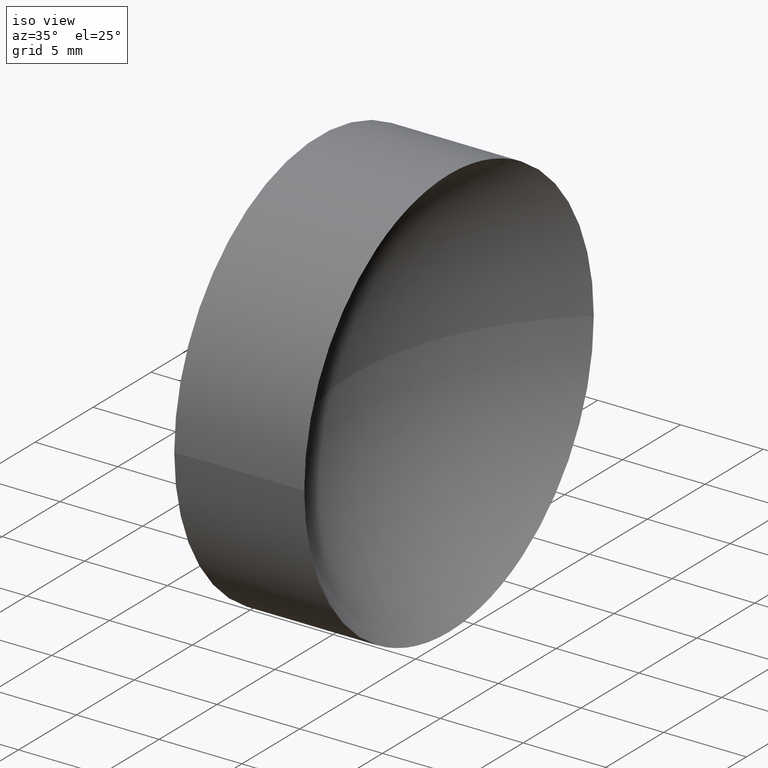
[diagram: clean part render]
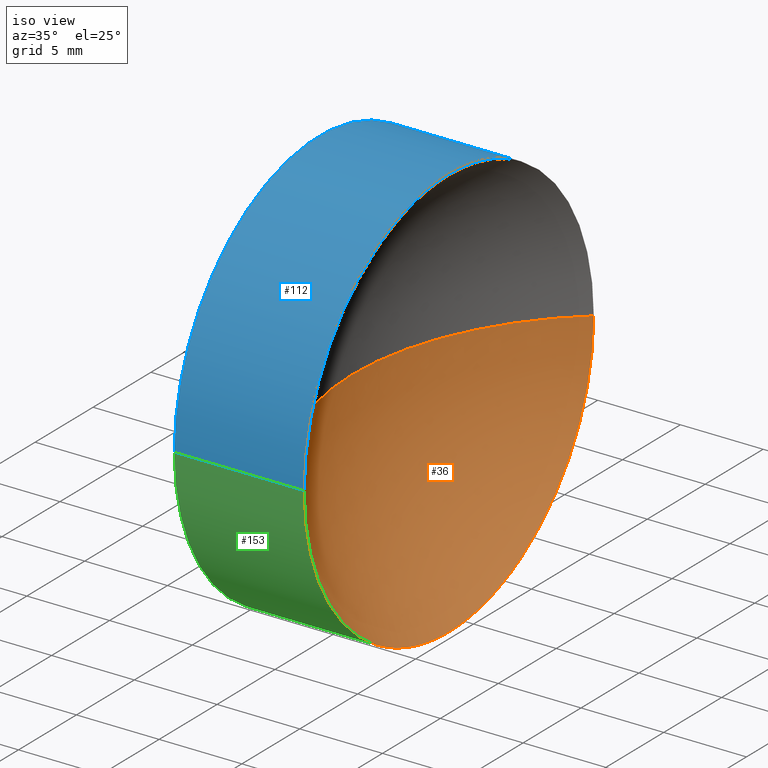
[diagram: same view with three faces highlighted in distinct colors, each labeled with its STEP entity id]
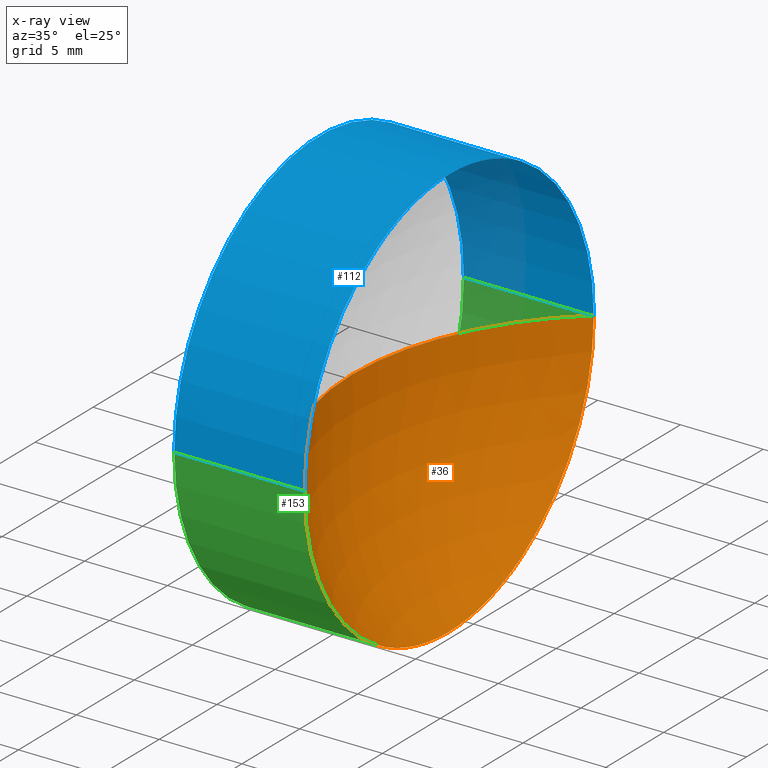
[diagram: x-ray of the same camera — body ghosted, the three highlighted faces saturated]
A machine part, iso view with three faces highlighted in distinct colors.
The next image is the same camera in x-ray (body ghosted, the three faces saturated) — at least one of them is partly hidden behind the body in this view.
Their STEP definitions:

[orange] entity #36 — the highlighted spherical surface has radius 16.27 mm.
#19 = EDGE_CURVE ( 'NONE', #154, #118, #66, .T. ) ;
#21 = CARTESIAN_POINT ( 'NONE',  ( 65.21363783927023400, 45.07872591329309100, 1.530808498934191500E-015 ) ) ;
#24 = AXIS2_PLACEMENT_3D ( 'NONE', #102, #60, #50 ) ;
#32 = SPHERICAL_SURFACE ( 'NONE', #24, 16.27000000000000300 ) ;
#33 = CARTESIAN_POINT ( 'NONE',  ( 65.21363783927022000, 32.57872591329309100, 0.0000000000000000000 ) ) ;
#36 = ADVANCED_FACE ( 'NONE', ( #74 ), #32, .F. ) ;
#45 = CARTESIAN_POINT ( 'NONE',  ( 75.62819015802112700, 32.57872591329309100, 0.0000000000000000000 ) ) ;
#48 = AXIS2_PLACEMENT_3D ( 'NONE', #45, #79, #136 ) ;
#50 = DIRECTION ( 'NONE',  ( -8.529679045983069200E-016, -1.000000000000000000, 0.0000000000000000000 ) ) ;
#53 = CARTESIAN_POINT ( 'NONE',  ( 75.62819015802112700, 32.57872591329309100, 0.0000000000000000000 ) ) ;
#60 = DIRECTION ( 'NONE',  ( 0.0000000000000000000, 0.0000000000000000000, 1.000000000000000000 ) ) ;
#66 = CIRCLE ( 'NONE', #48, 16.27000000000000700 ) ;
#74 = FACE_OUTER_BOUND ( 'NONE', #149, .T. ) ;
#75 = AXIS2_PLACEMENT_3D ( 'NONE', #33, #125, #106 ) ;
#79 = DIRECTION ( 'NONE',  ( 0.0000000000000000000, -0.0000000000000000000, -1.000000000000000000 ) ) ;
#90 = EDGE_CURVE ( 'NONE', #145, #154, #159, .T. ) ;
#93 = CARTESIAN_POINT ( 'NONE',  ( 59.35819015802111700, 32.57872591329309800, 0.0000000000000000000 ) ) ;
#102 = CARTESIAN_POINT ( 'NONE',  ( 75.62819015802112700, 32.57872591329309100, 0.0000000000000000000 ) ) ;
#106 = DIRECTION ( 'NONE',  ( 0.0000000000000000000, -1.000000000000000000, 0.0000000000000000000 ) ) ;
#108 = CIRCLE ( 'NONE', #117, 16.27000000000000300 ) ;
#110 = ORIENTED_EDGE ( 'NONE', *, *, #155, .T. ) ;
#113 = ORIENTED_EDGE ( 'NONE', *, *, #19, .F. ) ;
#114 = DIRECTION ( 'NONE',  ( 0.0000000000000000000, -1.000000000000000000, -1.224646799147353200E-016 ) ) ;
#117 = AXIS2_PLACEMENT_3D ( 'NONE', #53, #158, #114 ) ;
#118 = VERTEX_POINT ( 'NONE', #93 ) ;
#125 = DIRECTION ( 'NONE',  ( -1.000000000000000000, 4.853228644174421400E-016, -0.0000000000000000000 ) ) ;
#131 = ORIENTED_EDGE ( 'NONE', *, *, #90, .F. ) ;
#136 = DIRECTION ( 'NONE',  ( -1.000000000000000000, 0.0000000000000000000, 0.0000000000000000000 ) ) ;
#138 = CARTESIAN_POINT ( 'NONE',  ( 65.21363783927020600, 20.07872591329308400, 0.0000000000000000000 ) ) ;
#145 = VERTEX_POINT ( 'NONE', #21 ) ;
#149 = EDGE_LOOP ( 'NONE', ( #131, #110, #113 ) ) ;
#154 = VERTEX_POINT ( 'NONE', #138 ) ;
#155 = EDGE_CURVE ( 'NONE', #145, #118, #108, .T. ) ;
#158 = DIRECTION ( 'NONE',  ( -5.943490924618453600E-032, -1.224646799147353200E-016, 1.000000000000000000 ) ) ;
#159 = CIRCLE ( 'NONE', #75, 12.50000000000000400 ) ;

[blue] entity #112 — the highlighted cylindrical surface (partial cylindrical patch) has radius 12.5 mm, axis along (-1, 0, -0).
#2 = VECTOR ( 'NONE', #7, 1000.000000000000000 ) ;
#5 = EDGE_CURVE ( 'NONE', #29, #41, #25, .T. ) ;
#7 = DIRECTION ( 'NONE',  ( -1.000000000000000000, 4.853228644174421400E-016, -0.0000000000000000000 ) ) ;
#9 = CARTESIAN_POINT ( 'NONE',  ( 57.35819015802111700, 45.07872591329309100, 1.530808498934191900E-015 ) ) ;
#11 = DIRECTION ( 'NONE',  ( -1.000000000000000000, 4.853228644174421400E-016, -0.0000000000000000000 ) ) ;
#14 = EDGE_LOOP ( 'NONE', ( #89, #163, #98, #91 ) ) ;
#17 = CARTESIAN_POINT ( 'NONE',  ( 55.00739462442118800, 45.07872591329309100, 1.530808498934191500E-015 ) ) ;
#21 = CARTESIAN_POINT ( 'NONE',  ( 65.21363783927023400, 45.07872591329309100, 1.530808498934191500E-015 ) ) ;
#25 = CIRCLE ( 'NONE', #115, 12.49999999999999600 ) ;
#26 = CIRCLE ( 'NONE', #80, 12.50000000000000400 ) ;
#29 = VERTEX_POINT ( 'NONE', #62 ) ;
#30 = CARTESIAN_POINT ( 'NONE',  ( 65.21363783927022000, 32.57872591329309100, 0.0000000000000000000 ) ) ;
#37 = EDGE_CURVE ( 'NONE', #154, #145, #26, .T. ) ;
#40 = EDGE_CURVE ( 'NONE', #145, #41, #100, .T. ) ;
#41 = VERTEX_POINT ( 'NONE', #9 ) ;
#47 = FACE_OUTER_BOUND ( 'NONE', #14, .T. ) ;
#57 = VECTOR ( 'NONE', #119, 1000.000000000000000 ) ;
#59 = EDGE_CURVE ( 'NONE', #154, #29, #85, .T. ) ;
#62 = CARTESIAN_POINT ( 'NONE',  ( 57.35819015802110200, 20.07872591329309800, 0.0000000000000000000 ) ) ;
#63 = DIRECTION ( 'NONE',  ( -1.000000000000000000, 4.853228644174421400E-016, -0.0000000000000000000 ) ) ;
#64 = DIRECTION ( 'NONE',  ( 0.0000000000000000000, -1.000000000000000000, 0.0000000000000000000 ) ) ;
#80 = AXIS2_PLACEMENT_3D ( 'NONE', #30, #63, #64 ) ;
#85 = LINE ( 'NONE', #137, #2 ) ;
#89 = ORIENTED_EDGE ( 'NONE', *, *, #37, .T. ) ;
#91 = ORIENTED_EDGE ( 'NONE', *, *, #59, .F. ) ;
#98 = ORIENTED_EDGE ( 'NONE', *, *, #5, .F. ) ;
#100 = LINE ( 'NONE', #17, #57 ) ;
#103 = AXIS2_PLACEMENT_3D ( 'NONE', #107, #11, #128 ) ;
#107 = CARTESIAN_POINT ( 'NONE',  ( 55.00739462442118100, 32.57872591329309800, 0.0000000000000000000 ) ) ;
#111 = CARTESIAN_POINT ( 'NONE',  ( 57.35819015802111000, 32.57872591329309800, 0.0000000000000000000 ) ) ;
#112 = ADVANCED_FACE ( 'NONE', ( #47 ), #116, .T. ) ;
#115 = AXIS2_PLACEMENT_3D ( 'NONE', #111, #150, #120 ) ;
#116 = CYLINDRICAL_SURFACE ( 'NONE', #103, 12.50000000000000000 ) ;
#119 = DIRECTION ( 'NONE',  ( -1.000000000000000000, 4.853228644174421400E-016, -0.0000000000000000000 ) ) ;
#120 = DIRECTION ( 'NONE',  ( -5.551115123125784700E-016, -1.000000000000000000, 0.0000000000000000000 ) ) ;
#128 = DIRECTION ( 'NONE',  ( -5.551115123125782700E-016, -1.000000000000000000, 0.0000000000000000000 ) ) ;
#137 = CARTESIAN_POINT ( 'NONE',  ( 55.00739462442117400, 20.07872591329309500, 0.0000000000000000000 ) ) ;
#138 = CARTESIAN_POINT ( 'NONE',  ( 65.21363783927020600, 20.07872591329308400, 0.0000000000000000000 ) ) ;
#145 = VERTEX_POINT ( 'NONE', #21 ) ;
#150 = DIRECTION ( 'NONE',  ( -1.000000000000000000, 4.853228644174421400E-016, -0.0000000000000000000 ) ) ;
#154 = VERTEX_POINT ( 'NONE', #138 ) ;
#163 = ORIENTED_EDGE ( 'NONE', *, *, #40, .T. ) ;

[green] entity #153 — the highlighted cylindrical surface (partial cylindrical patch) has radius 12.5 mm, axis along (-1, 0, -0).
#2 = VECTOR ( 'NONE', #7, 1000.000000000000000 ) ;
#7 = DIRECTION ( 'NONE',  ( -1.000000000000000000, 4.853228644174421400E-016, -0.0000000000000000000 ) ) ;
#9 = CARTESIAN_POINT ( 'NONE',  ( 57.35819015802111700, 45.07872591329309100, 1.530808498934191900E-015 ) ) ;
#10 = DIRECTION ( 'NONE',  ( -5.551115123125784700E-016, -1.000000000000000000, 0.0000000000000000000 ) ) ;
#13 = EDGE_LOOP ( 'NONE', ( #54, #148, #27, #87 ) ) ;
#17 = CARTESIAN_POINT ( 'NONE',  ( 55.00739462442118800, 45.07872591329309100, 1.530808498934191500E-015 ) ) ;
#21 = CARTESIAN_POINT ( 'NONE',  ( 65.21363783927023400, 45.07872591329309100, 1.530808498934191500E-015 ) ) ;
#27 = ORIENTED_EDGE ( 'NONE', *, *, #59, .T. ) ;
#28 = EDGE_CURVE ( 'NONE', #41, #29, #97, .T. ) ;
#29 = VERTEX_POINT ( 'NONE', #62 ) ;
#33 = CARTESIAN_POINT ( 'NONE',  ( 65.21363783927022000, 32.57872591329309100, 0.0000000000000000000 ) ) ;
#40 = EDGE_CURVE ( 'NONE', #145, #41, #100, .T. ) ;
#41 = VERTEX_POINT ( 'NONE', #9 ) ;
#54 = ORIENTED_EDGE ( 'NONE', *, *, #40, .F. ) ;
#57 = VECTOR ( 'NONE', #119, 1000.000000000000000 ) ;
#59 = EDGE_CURVE ( 'NONE', #154, #29, #85, .T. ) ;
#62 = CARTESIAN_POINT ( 'NONE',  ( 57.35819015802110200, 20.07872591329309800, 0.0000000000000000000 ) ) ;
#65 = DIRECTION ( 'NONE',  ( -1.000000000000000000, 4.853228644174421400E-016, -0.0000000000000000000 ) ) ;
#71 = CARTESIAN_POINT ( 'NONE',  ( 55.00739462442118100, 32.57872591329309800, 0.0000000000000000000 ) ) ;
#73 = AXIS2_PLACEMENT_3D ( 'NONE', #122, #121, #10 ) ;
#75 = AXIS2_PLACEMENT_3D ( 'NONE', #33, #125, #106 ) ;
#85 = LINE ( 'NONE', #137, #2 ) ;
#87 = ORIENTED_EDGE ( 'NONE', *, *, #28, .F. ) ;
#90 = EDGE_CURVE ( 'NONE', #145, #154, #159, .T. ) ;
#97 = CIRCLE ( 'NONE', #73, 12.49999999999999600 ) ;
#100 = LINE ( 'NONE', #17, #57 ) ;
#106 = DIRECTION ( 'NONE',  ( 0.0000000000000000000, -1.000000000000000000, 0.0000000000000000000 ) ) ;
#119 = DIRECTION ( 'NONE',  ( -1.000000000000000000, 4.853228644174421400E-016, -0.0000000000000000000 ) ) ;
#121 = DIRECTION ( 'NONE',  ( -1.000000000000000000, 4.853228644174421400E-016, -0.0000000000000000000 ) ) ;
#122 = CARTESIAN_POINT ( 'NONE',  ( 57.35819015802111000, 32.57872591329309800, 0.0000000000000000000 ) ) ;
#124 = AXIS2_PLACEMENT_3D ( 'NONE', #71, #65, #129 ) ;
#125 = DIRECTION ( 'NONE',  ( -1.000000000000000000, 4.853228644174421400E-016, -0.0000000000000000000 ) ) ;
#129 = DIRECTION ( 'NONE',  ( -5.551115123125782700E-016, -1.000000000000000000, 0.0000000000000000000 ) ) ;
#130 = CYLINDRICAL_SURFACE ( 'NONE', #124, 12.50000000000000000 ) ;
#137 = CARTESIAN_POINT ( 'NONE',  ( 55.00739462442117400, 20.07872591329309500, 0.0000000000000000000 ) ) ;
#138 = CARTESIAN_POINT ( 'NONE',  ( 65.21363783927020600, 20.07872591329308400, 0.0000000000000000000 ) ) ;
#144 = FACE_OUTER_BOUND ( 'NONE', #13, .T. ) ;
#145 = VERTEX_POINT ( 'NONE', #21 ) ;
#148 = ORIENTED_EDGE ( 'NONE', *, *, #90, .T. ) ;
#153 = ADVANCED_FACE ( 'NONE', ( #144 ), #130, .T. ) ;
#154 = VERTEX_POINT ( 'NONE', #138 ) ;
#159 = CIRCLE ( 'NONE', #75, 12.50000000000000400 ) ;